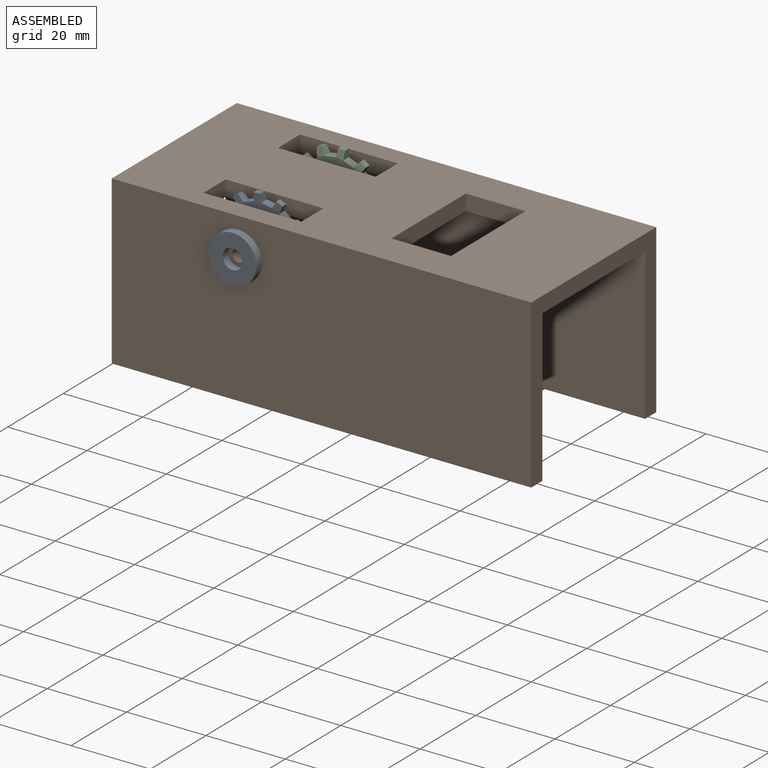
[diagram: assembled view]
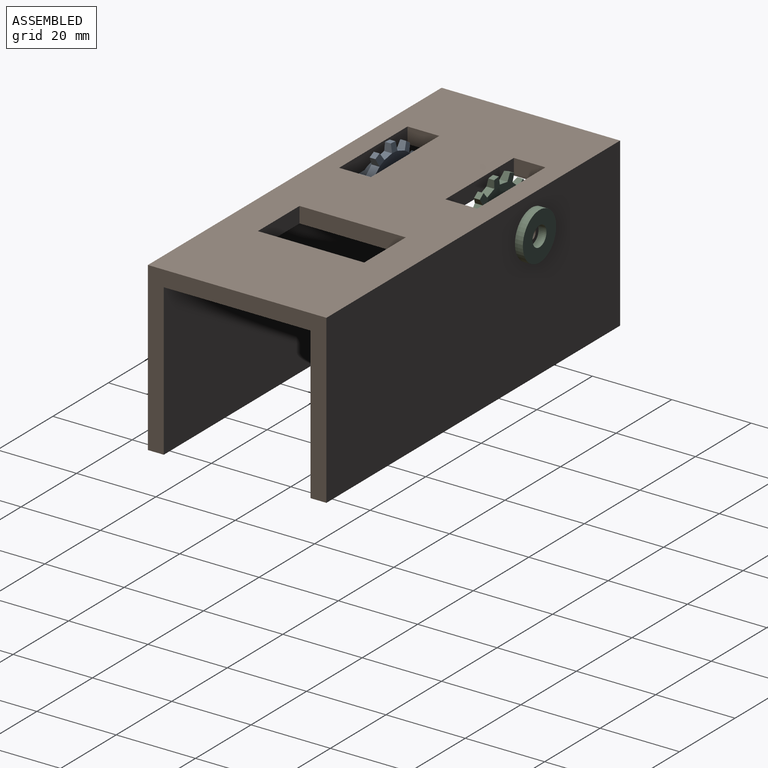
[diagram: assembled view, second angle]
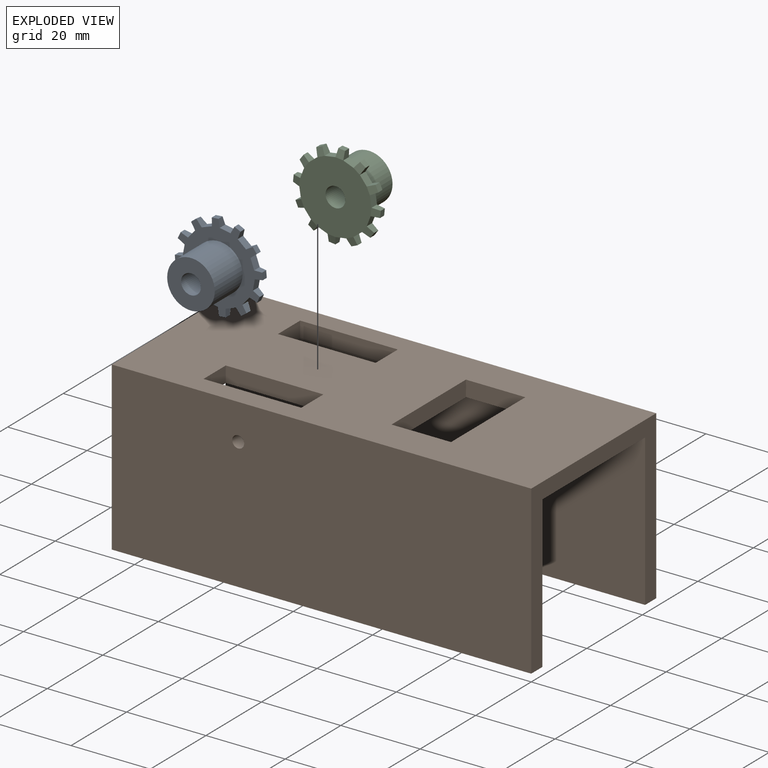
[diagram: exploded view]
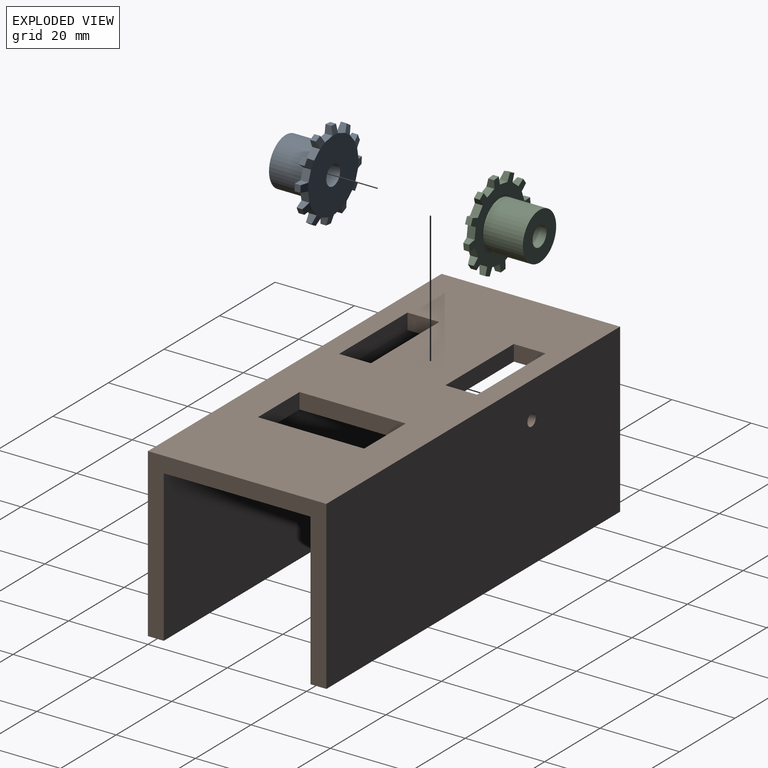
[diagram: exploded view, second angle]
ASSEMBLY  parts=3 mates=2
PART A: 65 faces, bbox 22.1x22.1x12 mm
  f0: plane 22.09x22.09mm, normal (0,0,-1), area 188mm2, adj f1,f3,f5,f6,f7,f8,f10,f11
  f1: plane 2.67x2mm, normal (0.26,0.97,0), area 5.5mm2, adj f0,f2,f5,f8
  f2: plane 18.09x18.09mm, normal (0,0,1), area 237.3mm2, adj f1,f4,f7,f9,f12,f14,f17,f19
  f3: plane 2x2mm, normal (-1,0.07,0), area 3.5mm2, adj f0,f4,f6,f57
  f4: plane 2x1.98mm, normal (0,0.26,0.97), area 3.8mm2, adj f2,f3,f5,f6
  f5: plane 2x2mm, normal (1,0.07,0), area 3.5mm2, adj f0,f1,f4,f6
  f6: plane 1.7x1.46mm, normal (0,1,0), area 2.5mm2, adj f0,f3,f4,f5
  f7: plane 2x1.96mm, normal (0.71,0.71,0), area 5.5mm2, adj f0,f2,f10,f13
  f8: plane 2x1.66mm, normal (-0.83,0.56,0), area 3.5mm2, adj f0,f1,f9,f11
  f9: plane 2.65x2.59mm, normal (0.13,0.22,0.97), area 3.8mm2, adj f2,f8,f10,f11
  f10: plane 2x1.8mm, normal (0.9,-0.44,0), area 3.5mm2, adj f0,f7,f9,f11
  f11: plane 1.47x1.46mm, normal (0.5,0.87,0), area 2.5mm2, adj f0,f8,f9,f10
  f12: plane 2.67x2mm, normal (0.97,0.26,0), area 5.5mm2, adj f0,f2,f15,f18
  f13: plane 2x1.8mm, normal (-0.44,0.9,0), area 3.5mm2, adj f0,f7,f14,f16
  f14: plane 2.65x2.59mm, normal (0.22,0.13,0.97), area 3.8mm2, adj f2,f13,f15,f16
  f15: plane 2x1.66mm, normal (0.56,-0.83,0), area 3.5mm2, adj f0,f12,f14,f16
  f16: plane 1.47x1.46mm, normal (0.87,0.5,0), area 2.5mm2, adj f0,f13,f14,f15
  f17: plane 2.67x2mm, normal (0.97,-0.26,0), area 5.5mm2, adj f0,f2,f20,f23
  f18: plane 2x2mm, normal (0.07,1,0), area 3.5mm2, adj f0,f12,f19,f21
  f19: plane 2x1.98mm, normal (0.26,0,0.97), area 3.8mm2, adj f2,f18,f20,f21
  f20: plane 2x2mm, normal (0.07,-1,0), area 3.5mm2, adj f0,f17,f19,f21
  f21: plane 1.7x1.46mm, normal (1,0,0), area 2.5mm2, adj f0,f18,f19,f20
  f22: plane 2x1.96mm, normal (0.71,-0.71,0), area 5.5mm2, adj f0,f2,f25,f28
  f23: plane 2x1.66mm, normal (0.56,0.83,0), area 3.5mm2, adj f0,f17,f24,f26
  f24: plane 2.65x2.59mm, normal (0.22,-0.13,0.97), area 3.8mm2, adj f2,f23,f25,f26
  f25: plane 2x1.8mm, normal (-0.44,-0.9,0), area 3.5mm2, adj f0,f22,f24,f26
  f26: plane 1.47x1.46mm, normal (0.87,-0.5,0), area 2.5mm2, adj f0,f23,f24,f25
  f27: plane 2.67x2mm, normal (0.26,-0.97,0), area 5.5mm2, adj f0,f2,f30,f33
  f28: plane 2x1.8mm, normal (0.9,0.44,0), area 3.5mm2, adj f0,f22,f29,f31
  f29: plane 2.65x2.59mm, normal (0.13,-0.22,0.97), area 3.8mm2, adj f2,f28,f30,f31
  f30: plane 2x1.66mm, normal (-0.83,-0.56,0), area 3.5mm2, adj f0,f27,f29,f31
  f31: plane 1.47x1.46mm, normal (0.5,-0.87,0), area 2.5mm2, adj f0,f28,f29,f30
  f32: plane 2.67x2mm, normal (-0.26,-0.97,0), area 5.5mm2, adj f0,f2,f35,f38
  f33: plane 2x2mm, normal (1,-0.07,0), area 3.5mm2, adj f0,f27,f34,f36
  f34: plane 2x1.98mm, normal (0,-0.26,0.97), area 3.8mm2, adj f2,f33,f35,f36
  f35: plane 2x2mm, normal (-1,-0.07,0), area 3.5mm2, adj f0,f32,f34,f36
  f36: plane 1.7x1.46mm, normal (0,-1,0), area 2.5mm2, adj f0,f33,f34,f35
  f37: plane 2x1.96mm, normal (-0.71,-0.71,0), area 5.5mm2, adj f0,f2,f40,f43
  f38: plane 2x1.66mm, normal (0.83,-0.56,0), area 3.5mm2, adj f0,f32,f39,f41
  f39: plane 2.65x2.59mm, normal (-0.13,-0.22,0.97), area 3.8mm2, adj f2,f38,f40,f41
  f40: plane 2x1.8mm, normal (-0.9,0.44,0), area 3.5mm2, adj f0,f37,f39,f41
  f41: plane 1.47x1.46mm, normal (-0.5,-0.87,0), area 2.5mm2, adj f0,f38,f39,f40
  f42: plane 2.67x2mm, normal (-0.97,-0.26,0), area 5.5mm2, adj f0,f2,f45,f48
  f43: plane 2x1.8mm, normal (0.44,-0.9,0), area 3.5mm2, adj f0,f37,f44,f46
  f44: plane 2.65x2.59mm, normal (-0.22,-0.13,0.97), area 3.8mm2, adj f2,f43,f45,f46
  f45: plane 2x1.66mm, normal (-0.56,0.83,0), area 3.5mm2, adj f0,f42,f44,f46
  f46: plane 1.47x1.46mm, normal (-0.87,-0.5,0), area 2.5mm2, adj f0,f43,f44,f45
  f47: plane 2.67x2mm, normal (-0.97,0.26,0), area 5.5mm2, adj f0,f2,f50,f53
  f48: plane 2x2mm, normal (-0.07,-1,0), area 3.5mm2, adj f0,f42,f49,f51
  f49: plane 2x1.98mm, normal (-0.26,0,0.97), area 3.8mm2, adj f2,f48,f50,f51
  f50: plane 2x2mm, normal (-0.07,1,0), area 3.5mm2, adj f0,f47,f49,f51
  f51: plane 1.7x1.46mm, normal (-1,0,0), area 2.5mm2, adj f0,f48,f49,f50
  f52: plane 2x1.96mm, normal (-0.71,0.71,0), area 5.5mm2, adj f0,f2,f55,f58
  f53: plane 2x1.66mm, normal (-0.56,-0.83,0), area 3.5mm2, adj f0,f47,f54,f56
  f54: plane 2.65x2.59mm, normal (-0.22,0.13,0.97), area 3.8mm2, adj f2,f53,f55,f56
  f55: plane 2x1.8mm, normal (0.44,0.9,0), area 3.5mm2, adj f0,f52,f54,f56
  f56: plane 1.47x1.46mm, normal (-0.87,0.5,0), area 2.5mm2, adj f0,f53,f54,f55
  f57: plane 2.67x2mm, normal (-0.26,0.97,0), area 5.5mm2, adj f0,f2,f3,f60
  f58: plane 2x1.8mm, normal (-0.9,-0.44,0), area 3.5mm2, adj f0,f52,f59,f61
  f59: plane 2.65x2.59mm, normal (-0.13,0.22,0.97), area 3.8mm2, adj f2,f58,f60,f61
  f60: plane 2x1.66mm, normal (0.83,0.56,0), area 3.5mm2, adj f0,f57,f59,f61
  f61: plane 1.47x1.46mm, normal (-0.5,0.87,0), area 2.5mm2, adj f0,f58,f59,f60
  f62: cylinder r=2.5mm len=12mm, axis (0,0,-1), area 188.5mm2, adj f2,f64
  f63: cylinder r=6mm len=12mm, axis (0,0,1), area 377mm2, adj f0,f64
  f64: plane 12x12mm, normal (0,0,-1), area 93.5mm2, adj f62,f63
PART B: 24 faces, bbox 105.7x45x42.2 mm
  f0: plane 105.74x37mm, normal (0,0,-1), area 3116.2mm2, adj f1,f2,f3,f4,f5,f6,f7,f9
  f1: plane 8x4mm, normal (1,0,0), area 32mm2, adj f0,f2,f10,f11
  f2: plane 24.63x4mm, normal (0,-1,0), area 98.5mm2, adj f0,f1,f3,f11
  f3: plane 8x4mm, normal (-1,0,0), area 32mm2, adj f0,f2,f10,f11
  f4: plane 26.79x4mm, normal (-1,0,0), area 107.2mm2, adj f0,f5,f11,f18
  f5: plane 15x4mm, normal (0,1,0), area 60mm2, adj f0,f4,f6,f11
  f6: plane 26.79x4mm, normal (1,0,0), area 107.2mm2, adj f0,f5,f11,f18
  f7: plane 45x42.16mm, normal (-1,0,0), area 485.3mm2, adj f0,f8,f11,f13,f14,f19,f22,f23
  f8: plane 105.74x42.16mm, normal (0,-1,0), area 4450.7mm2, adj f7,f9,f11,f12,f13
  f9: plane 45x42.16mm, normal (1,0,0), area 485.3mm2, adj f0,f8,f11,f13,f14,f19,f22,f23
  f10: plane 24.63x4mm, normal (0,1,0), area 98.5mm2, adj f0,f1,f3,f11
  f11: plane 105.74x45mm, normal (0,0,1), area 3962.1mm2, adj f1,f2,f3,f4,f5,f6,f7,f8
  f12: cylinder r=1.5mm len=4mm, axis (0,-1,0), area 37.7mm2, adj f8,f14
  f13: plane 105.74x4mm, normal (0,0,-1), area 422.9mm2, adj f7,f8,f9,f14
  f14: plane 105.74x38.16mm, normal (0,1,0), area 4027.8mm2, adj f0,f7,f9,f12,f13
  f15: plane 8x4mm, normal (1,0,0), area 32mm2, adj f0,f11,f16,f20
  f16: plane 24.63x4mm, normal (0,1,0), area 98.5mm2, adj f0,f11,f15,f17
  f17: plane 8x4mm, normal (-1,0,0), area 32mm2, adj f0,f11,f16,f20
  f18: plane 15x4mm, normal (0,-1,0), area 60mm2, adj f0,f4,f6,f11
  f19: plane 105.74x42.16mm, normal (0,1,0), area 4450.7mm2, adj f7,f9,f11,f21,f22
  f20: plane 24.63x4mm, normal (0,-1,0), area 98.5mm2, adj f0,f11,f15,f17
  f21: cylinder r=1.5mm len=4mm, axis (0,1,0), area 37.7mm2, adj f19,f23
  f22: plane 105.74x4mm, normal (0,0,-1), area 422.9mm2, adj f7,f9,f19,f23
  f23: plane 105.74x38.16mm, normal (0,-1,0), area 4027.8mm2, adj f0,f7,f9,f21,f22
PART C: same geometry as A
PLACE A rot(axis=(-0.22,0.69,0.69),155.7deg) t=(-96.59,8,67.61)mm
PLACE B t=(-74.86,37.34,38.16)mm
PLACE C rot(axis=(0.73,0.48,-0.48),107.4deg) t=(-36.41,37,50.58)mm
MATE revolute A.f62 <-> B.f12  axis (0,1,0) through (-73.87,10,33.06)mm
MATE revolute C.f62 <-> B.f12  axis (0,-1,0) through (-73.87,35,33.06)mm
